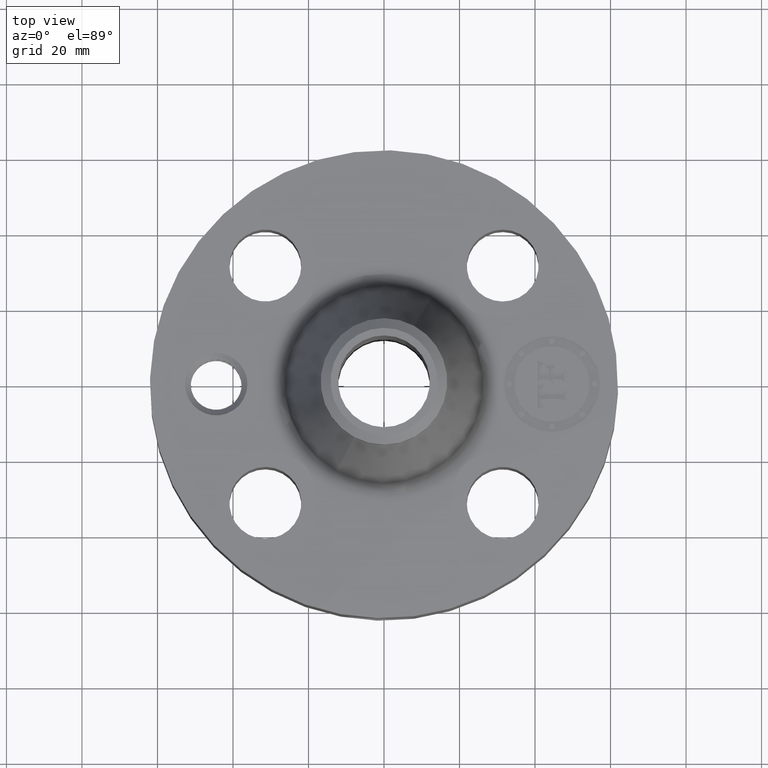
[diagram: clean part render]
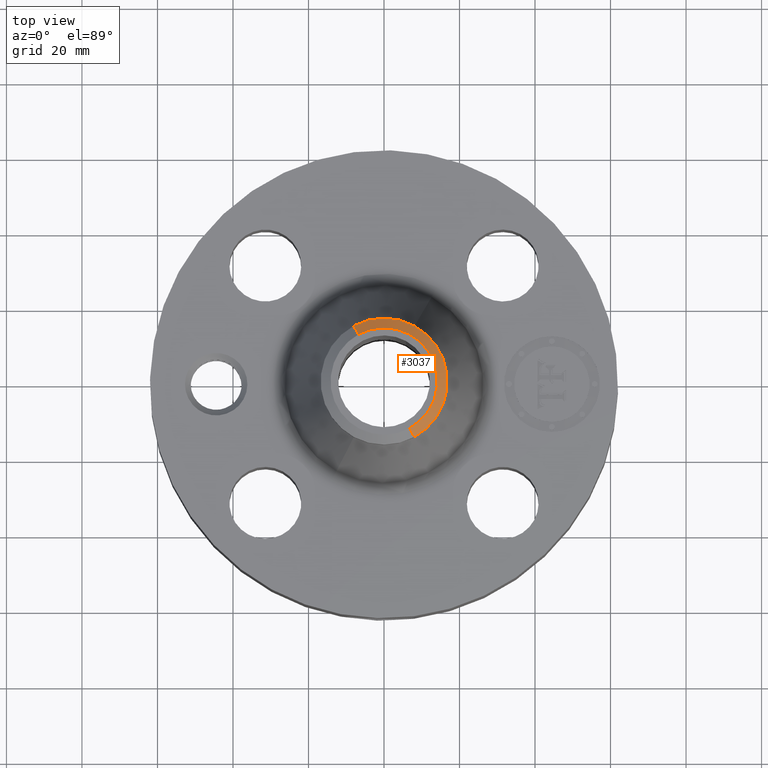
[diagram: same view with one face highlighted and labeled with its STEP entity id]
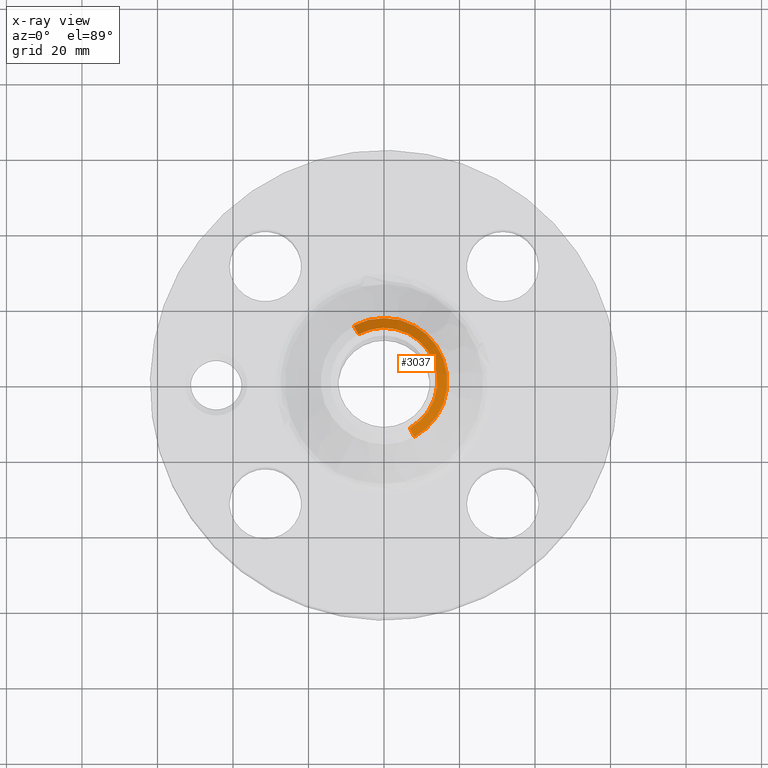
[diagram: x-ray of the same camera — body ghosted, the highlighted face saturated]
A machine part, top view. The second image highlights one B-rep face of the part: STEP entity #3037.
The next image is the same camera in x-ray: the body ghosted, the highlighted face saturated — about 0% of this face is hidden behind the body in this view.
In plain terms, the highlighted conical surface has half-angle 52.5 deg.
Its self-contained STEP definition (entity closure, byte-faithful):
#2163=AXIS2_PLACEMENT_3D('Circle Axis2P3D',#2161,#2162,$) ;
#2982=AXIS2_PLACEMENT_3D('Cone Axis2P3D',#2979,#2980,#2981) ;
#3020=AXIS2_PLACEMENT_3D('Circle Axis2P3D',#3018,#3019,$) ;
#3027=AXIS2_PLACEMENT_3D('Circle Axis2P3D',#3025,#3026,$) ;
#2161=CARTESIAN_POINT('Axis2P3D Location',(0.,0.,3.50000000001)) ;
#2165=CARTESIAN_POINT('Vertex',(0.267155162633,-0.489024244991,3.50000000001)) ;
#2167=CARTESIAN_POINT('Vertex',(-0.267155162633,0.489024244991,3.50000000001)) ;
#2979=CARTESIAN_POINT('Axis2P3D Location',(0.,0.,3.50000000001)) ;
#2984=CARTESIAN_POINT('Line Origine',(0.291788009056,-0.534114367921,3.46057479979)) ;
#2988=CARTESIAN_POINT('Vertex',(0.31642085548,-0.57920449085,3.42114959957)) ;
#2991=CARTESIAN_POINT('Line Origine',(-0.291788009056,0.534114367921,3.46057479979)) ;
#2995=CARTESIAN_POINT('Vertex',(-0.31642085548,0.57920449085,3.42114959957)) ;
#3018=CARTESIAN_POINT('Axis2P3D Location',(0.,0.,3.42114959957)) ;
#3022=CARTESIAN_POINT('Vertex',(0.31642085548,0.57920449085,3.42114959957)) ;
#3025=CARTESIAN_POINT('Axis2P3D Location',(0.,0.,3.42114959957)) ;
#2162=DIRECTION('Axis2P3D Direction',(0.,0.,-0.0393700787402)) ;
#2980=DIRECTION('Axis2P3D Direction',(-0.,-0.,-0.0393700787402)) ;
#2981=DIRECTION('Axis2P3D XDirection',(-0.0188750212049,0.0345504945626,0.)) ;
#2985=DIRECTION('Vector Direction',(0.014974561121,-0.02741075027,-0.023966985394)) ;
#2992=DIRECTION('Vector Direction',(-0.014974561121,0.02741075027,-0.023966985394)) ;
#3019=DIRECTION('Axis2P3D Direction',(0.,0.,-0.0393700787402)) ;
#3026=DIRECTION('Axis2P3D Direction',(0.,0.,-0.0393700787402)) ;
#2986=VECTOR('Line Direction',#2985,0.0393700787402) ;
#2993=VECTOR('Line Direction',#2992,0.0393700787402) ;
#3031=ORIENTED_EDGE('',*,*,#2997,.F.) ;
#3032=ORIENTED_EDGE('',*,*,#2169,.F.) ;
#3033=ORIENTED_EDGE('',*,*,#2990,.T.) ;
#3034=ORIENTED_EDGE('',*,*,#3024,.T.) ;
#3035=ORIENTED_EDGE('',*,*,#3029,.F.) ;
#3037=ADVANCED_FACE('PartBody',(#3036),#2983,.T.) ;
#2164=CIRCLE('generated circle',#2163,0.557240157482) ;
#3021=CIRCLE('generated circle',#3020,0.660000000003) ;
#3028=CIRCLE('generated circle',#3027,0.660000000003) ;
#2983=CONICAL_SURFACE('Cone',#2982,0.557240157482,0.916297857297) ;
#2169=EDGE_CURVE('',#2166,#2168,#2164,.F.) ;
#2990=EDGE_CURVE('',#2166,#2989,#2987,.T.) ;
#2997=EDGE_CURVE('',#2168,#2996,#2994,.T.) ;
#3024=EDGE_CURVE('',#2989,#3023,#3021,.F.) ;
#3029=EDGE_CURVE('',#2996,#3023,#3028,.T.) ;
#3030=EDGE_LOOP('',(#3031,#3032,#3033,#3034,#3035)) ;
#3036=FACE_OUTER_BOUND('',#3030,.T.) ;
#2987=LINE('Line',#2984,#2986) ;
#2994=LINE('Line',#2991,#2993) ;
#2166=VERTEX_POINT('',#2165) ;
#2168=VERTEX_POINT('',#2167) ;
#2989=VERTEX_POINT('',#2988) ;
#2996=VERTEX_POINT('',#2995) ;
#3023=VERTEX_POINT('',#3022) ;